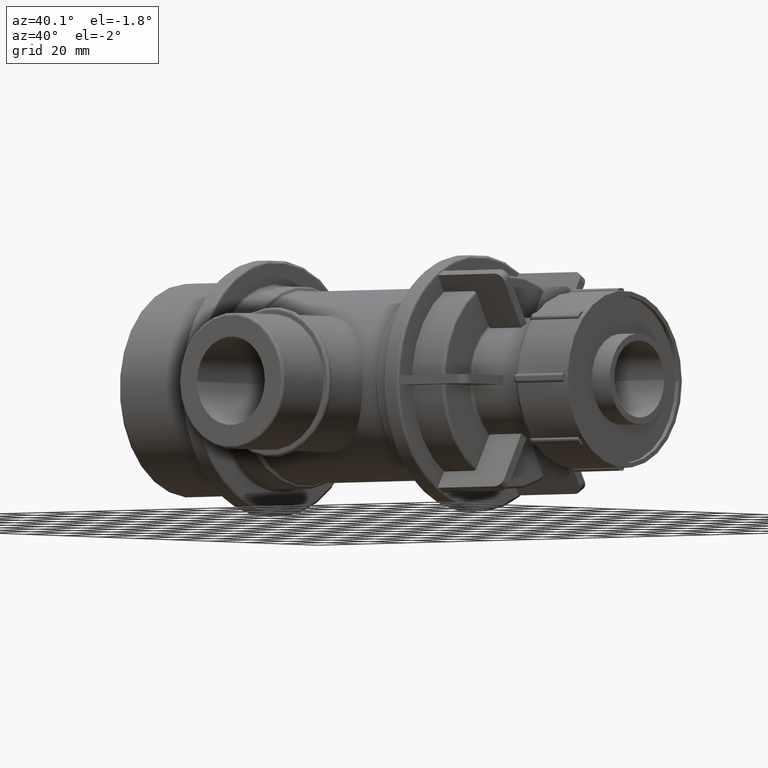
[diagram: clean part render]
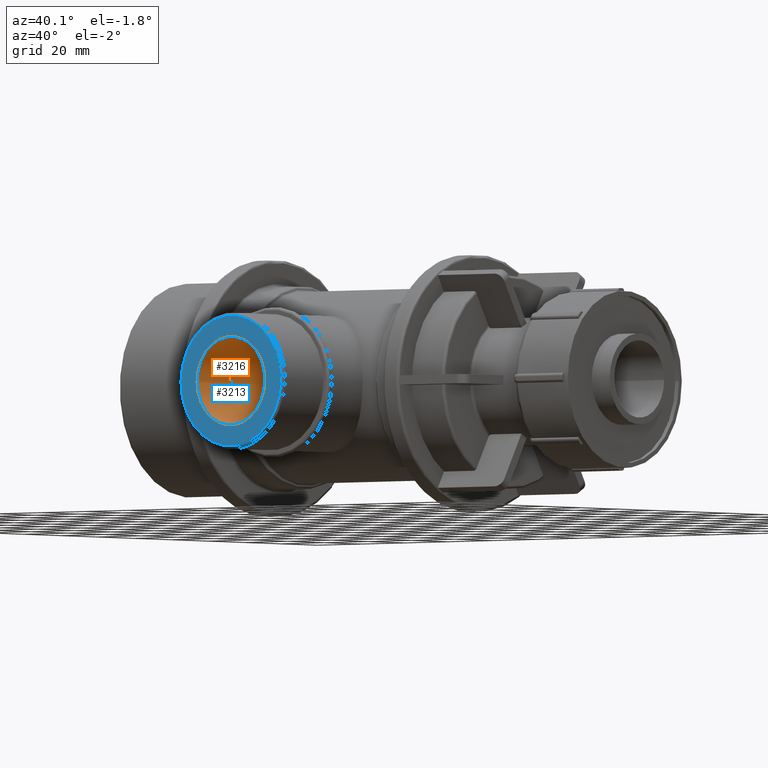
[diagram: same view with the hole feature highlighted: cylindrical wall and planar end face, labeled with their STEP entity ids]
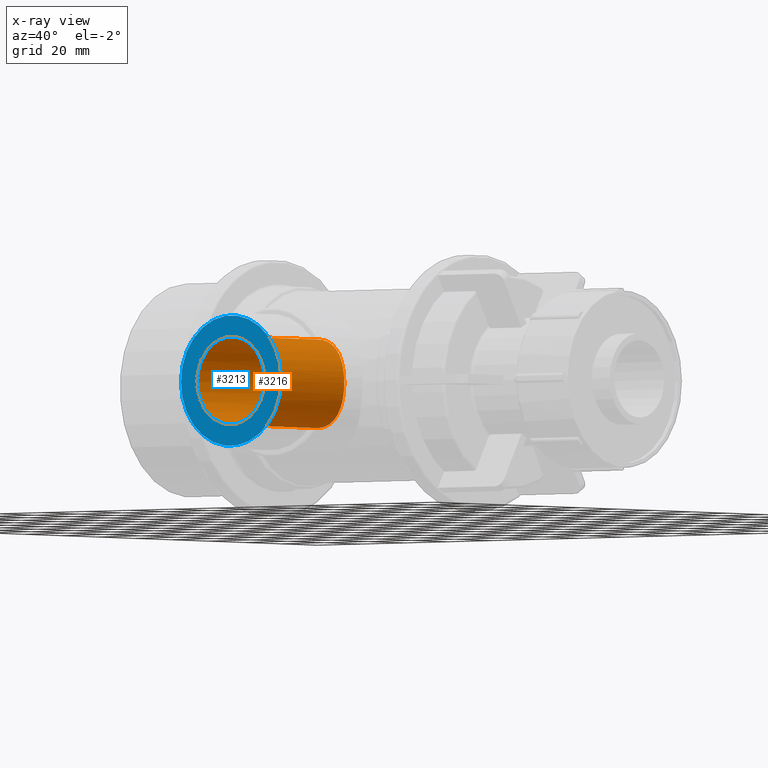
[diagram: x-ray of the same camera — body ghosted, the hole faces saturated]
A machine part, auxiliary view. The highlighted faces form one hole feature of diameter 31.072 mm: the cylindrical wall (entity #3216, orange) and its adjacent planar end face (entity #3213, blue) — they share a circular edge in the B-rep.
The next image is the same camera in x-ray (body ghosted, the hole faces saturated) — the bore reads through the body.
Wall:
#712=CIRCLE('',#3604,15.535975);
#797=FACE_BOUND('',#1281,.T.);
#1009=FACE_OUTER_BOUND('',#1280,.T.);
#1280=EDGE_LOOP('',(#2934));
#1281=EDGE_LOOP('',(#2935));
#1333=B_SPLINE_CURVE_WITH_KNOTS('',3,(#6201,#6202,#6203,#6204,#6205,#6206,
#6207,#6208,#6209,#6210,#6211,#6212,#6213,#6214,#6215,#6216,#6217,#6218,
#6219,#6220,#6221,#6222,#6223,#6224,#6225,#6226,#6227,#6228,#6229,#6230,
#6231,#6232,#6233,#6234,#6235,#6236,#6237,#6238,#6239,#6240,#6241,#6242,
#6243,#6244,#6245,#6246,#6247,#6248,#6249,#6250),.UNSPECIFIED.,.T.,.F.,
(4,2,2,2,2,2,2,2,2,2,2,2,2,2,2,2,2,2,2,2,2,2,2,2,4),(0.,0.297846823282371,
0.595693646564742,1.19138729312948,1.78596310865965,2.08325101642473,2.38053892418982,
2.6778268319549,2.97511473971998,3.56969055525015,4.16538420181489,4.46323102509726,
4.76107784837964,5.05892467166201,5.35677149494438,5.95246514150912,6.54704095703928,
6.84432886480437,7.14161677256945,7.43890468033453,7.73619258809962,8.33076840362978,
8.92646205019453,9.2243088734769,9.52215569675927),.UNSPECIFIED.);
#1618=VERTEX_POINT('',#6200);
#1627=VERTEX_POINT('',#6274);
#2054=EDGE_CURVE('',#1618,#1618,#1333,.T.);
#2063=EDGE_CURVE('',#1627,#1627,#712,.T.);
#2934=ORIENTED_EDGE('',*,*,#2054,.T.);
#2935=ORIENTED_EDGE('',*,*,#2063,.F.);
#3004=CYLINDRICAL_SURFACE('',#3607,15.535975);
#3216=ADVANCED_FACE('',(#1009,#797),#3004,.F.);
#3604=AXIS2_PLACEMENT_3D('',#6275,#4548,#4549);
#3607=AXIS2_PLACEMENT_3D('',#6278,#4554,#4555);
#4548=DIRECTION('center_axis',(-1.22464679914735E-16,1.,0.));
#4549=DIRECTION('ref_axis',(1.,1.22464679914735E-16,0.));
#4554=DIRECTION('center_axis',(-1.22464679914735E-16,1.,0.));
#4555=DIRECTION('ref_axis',(-1.,0.,0.));
#6200=CARTESIAN_POINT('',(2.77555756156289E-16,-29.9615750720715,15.535975));
#6201=CARTESIAN_POINT('Ctrl Pts',(2.77555756156289E-16,-29.9615750720715,
15.535975));
#6202=CARTESIAN_POINT('Ctrl Pts',(0.992822744274571,-29.9615750720715,15.535975));
#6203=CARTESIAN_POINT('Ctrl Pts',(2.01364809435462,-30.0123489016254,15.4392955990789));
#6204=CARTESIAN_POINT('Ctrl Pts',(4.0335049289002,-30.2151529798586,15.0385326883145));
#6205=CARTESIAN_POINT('Ctrl Pts',(5.03259602221333,-30.3668860694912,14.7345993043153));
#6206=CARTESIAN_POINT('Ctrl Pts',(7.89475542570882,-30.9276894483553,13.539393087408));
#6207=CARTESIAN_POINT('Ctrl Pts',(9.62136532238343,-31.4424249343702,12.3498212273059));
#6208=CARTESIAN_POINT('Ctrl Pts',(12.3472612262848,-32.3808033595306,9.62392532340457));
#6209=CARTESIAN_POINT('Ctrl Pts',(13.5387395992768,-32.8705926631432,7.89640541234864));
#6210=CARTESIAN_POINT('Ctrl Pts',(14.7350749686837,-33.3869587517985,5.03141440189864));
#6211=CARTESIAN_POINT('Ctrl Pts',(15.0391142523387,-33.523709188,4.03137400186706));
#6212=CARTESIAN_POINT('Ctrl Pts',(15.4396292398893,-33.7052855096937,2.01116453234764));
#6213=CARTESIAN_POINT('Ctrl Pts',(15.535975,-33.75,0.99095969255028));
#6214=CARTESIAN_POINT('Ctrl Pts',(15.535975,-33.75,-0.990959692550276));
#6215=CARTESIAN_POINT('Ctrl Pts',(15.4396292398893,-33.7052855096937,-2.01116453234763));
#6216=CARTESIAN_POINT('Ctrl Pts',(15.0391142523387,-33.523709188,-4.03137400186706));
#6217=CARTESIAN_POINT('Ctrl Pts',(14.7350749686837,-33.3869587517985,-5.03141440189864));
#6218=CARTESIAN_POINT('Ctrl Pts',(13.5387395992768,-32.8705926631432,-7.89640541234864));
#6219=CARTESIAN_POINT('Ctrl Pts',(12.3472612262848,-32.3808033595306,-9.62392532340457));
#6220=CARTESIAN_POINT('Ctrl Pts',(9.62136532238343,-31.4424249343702,-12.3498212273059));
#6221=CARTESIAN_POINT('Ctrl Pts',(7.89475542570882,-30.9276894483553,-13.539393087408));
#6222=CARTESIAN_POINT('Ctrl Pts',(5.03259602221333,-30.3668860694912,-14.7345993043153));
#6223=CARTESIAN_POINT('Ctrl Pts',(4.0335049289002,-30.2151529798586,-15.0385326883145));
#6224=CARTESIAN_POINT('Ctrl Pts',(2.01364809435462,-30.0123489016254,-15.4392955990789));
#6225=CARTESIAN_POINT('Ctrl Pts',(0.99282274427457,-29.9615750720715,-15.535975));
#6226=CARTESIAN_POINT('Ctrl Pts',(-0.992822744274568,-29.9615750720715,
-15.535975));
#6227=CARTESIAN_POINT('Ctrl Pts',(-2.01364809435462,-30.0123489016254,-15.4392955990789));
#6228=CARTESIAN_POINT('Ctrl Pts',(-4.0335049289002,-30.2151529798586,-15.0385326883145));
#6229=CARTESIAN_POINT('Ctrl Pts',(-5.03259602221332,-30.3668860694912,-14.7345993043153));
#6230=CARTESIAN_POINT('Ctrl Pts',(-7.89475542570881,-30.9276894483553,-13.539393087408));
#6231=CARTESIAN_POINT('Ctrl Pts',(-9.62136532238341,-31.4424249343702,-12.3498212273059));
#6232=CARTESIAN_POINT('Ctrl Pts',(-12.3472612262848,-32.3808033595306,-9.62392532340457));
#6233=CARTESIAN_POINT('Ctrl Pts',(-13.5387395992768,-32.8705926631432,-7.89640541234864));
#6234=CARTESIAN_POINT('Ctrl Pts',(-14.7350749686836,-33.3869587517985,-5.03141440189864));
#6235=CARTESIAN_POINT('Ctrl Pts',(-15.0391142523387,-33.523709188,-4.03137400186707));
#6236=CARTESIAN_POINT('Ctrl Pts',(-15.4396292398892,-33.7052855096937,-2.01116453234764));
#6237=CARTESIAN_POINT('Ctrl Pts',(-15.535975,-33.75,-0.990959692550281));
#6238=CARTESIAN_POINT('Ctrl Pts',(-15.535975,-33.75,0.990959692550274));
#6239=CARTESIAN_POINT('Ctrl Pts',(-15.4396292398893,-33.7052855096937,2.01116453234763));
#6240=CARTESIAN_POINT('Ctrl Pts',(-15.0391142523387,-33.523709188,4.03137400186706));
#6241=CARTESIAN_POINT('Ctrl Pts',(-14.7350749686836,-33.3869587517985,5.03141440189863));
#6242=CARTESIAN_POINT('Ctrl Pts',(-13.5387395992768,-32.8705926631432,7.89640541234863));
#6243=CARTESIAN_POINT('Ctrl Pts',(-12.3472612262848,-32.3808033595306,9.62392532340457));
#6244=CARTESIAN_POINT('Ctrl Pts',(-9.62136532238343,-31.4424249343702,12.3498212273059));
#6245=CARTESIAN_POINT('Ctrl Pts',(-7.89475542570882,-30.9276894483553,13.539393087408));
#6246=CARTESIAN_POINT('Ctrl Pts',(-5.03259602221334,-30.3668860694913,14.7345993043153));
#6247=CARTESIAN_POINT('Ctrl Pts',(-4.0335049289002,-30.2151529798586,15.0385326883145));
#6248=CARTESIAN_POINT('Ctrl Pts',(-2.01364809435462,-30.0123489016254,15.4392955990789));
#6249=CARTESIAN_POINT('Ctrl Pts',(-0.992822744274572,-29.9615750720715,
15.535975));
#6250=CARTESIAN_POINT('Ctrl Pts',(0.,-29.9615750720715,15.535975));
#6274=CARTESIAN_POINT('',(-15.535975,-77.,0.));
#6275=CARTESIAN_POINT('Origin',(9.42978035343462E-15,-77.,0.));
#6278=CARTESIAN_POINT('Origin',(4.71406426751053E-15,-38.49325593953,0.));
End face:
#510=PLANE('',#3603);
#710=CIRCLE('',#3601,22.9015);
#712=CIRCLE('',#3604,15.535975);
#794=FACE_BOUND('',#1275,.T.);
#1006=FACE_OUTER_BOUND('',#1274,.T.);
#1274=EDGE_LOOP('',(#2928));
#1275=EDGE_LOOP('',(#2929));
#1625=VERTEX_POINT('',#6269);
#1627=VERTEX_POINT('',#6274);
#2061=EDGE_CURVE('',#1625,#1625,#710,.T.);
#2063=EDGE_CURVE('',#1627,#1627,#712,.T.);
#2928=ORIENTED_EDGE('',*,*,#2061,.F.);
#2929=ORIENTED_EDGE('',*,*,#2063,.T.);
#3213=ADVANCED_FACE('',(#1006,#794),#510,.T.);
#3601=AXIS2_PLACEMENT_3D('',#6270,#4542,#4543);
#3603=AXIS2_PLACEMENT_3D('',#6273,#4546,#4547);
#3604=AXIS2_PLACEMENT_3D('',#6275,#4548,#4549);
#4542=DIRECTION('center_axis',(-1.22464679914735E-16,1.,0.));
#4543=DIRECTION('ref_axis',(1.,1.22464679914735E-16,0.));
#4546=DIRECTION('center_axis',(1.22464679914735E-16,-1.,0.));
#4547=DIRECTION('ref_axis',(0.,0.,-1.));
#4548=DIRECTION('center_axis',(-1.22464679914735E-16,1.,0.));
#4549=DIRECTION('ref_axis',(1.,1.22464679914735E-16,0.));
#6269=CARTESIAN_POINT('',(-22.9015,-77.,2.80462486706731E-15));
#6270=CARTESIAN_POINT('Origin',(9.42978035343462E-15,-77.,0.));
#6273=CARTESIAN_POINT('Origin',(-23.9015,-77.,0.));
#6274=CARTESIAN_POINT('',(-15.535975,-77.,0.));
#6275=CARTESIAN_POINT('Origin',(9.42978035343462E-15,-77.,0.));